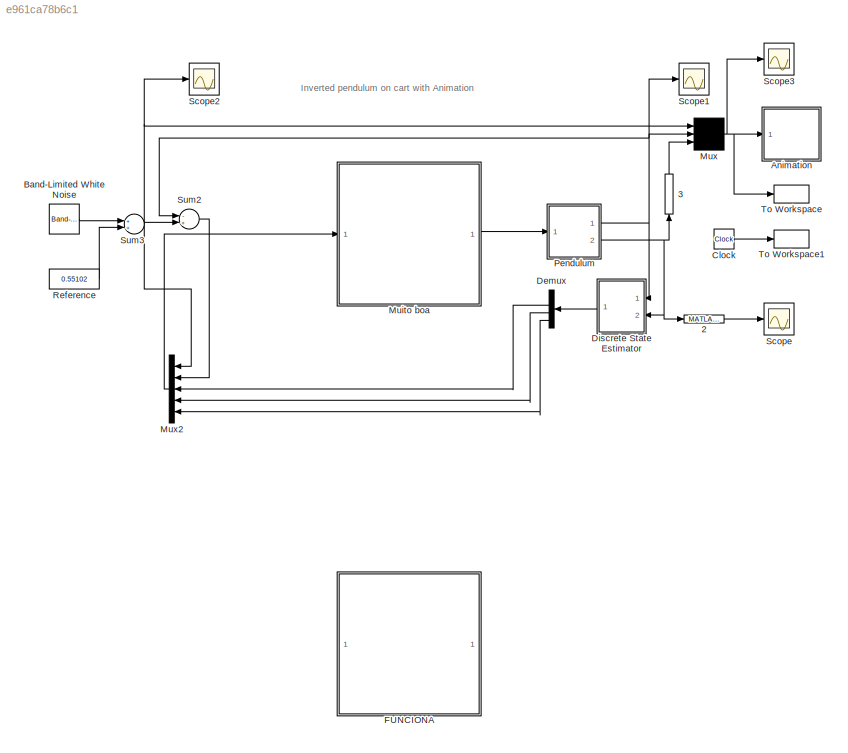
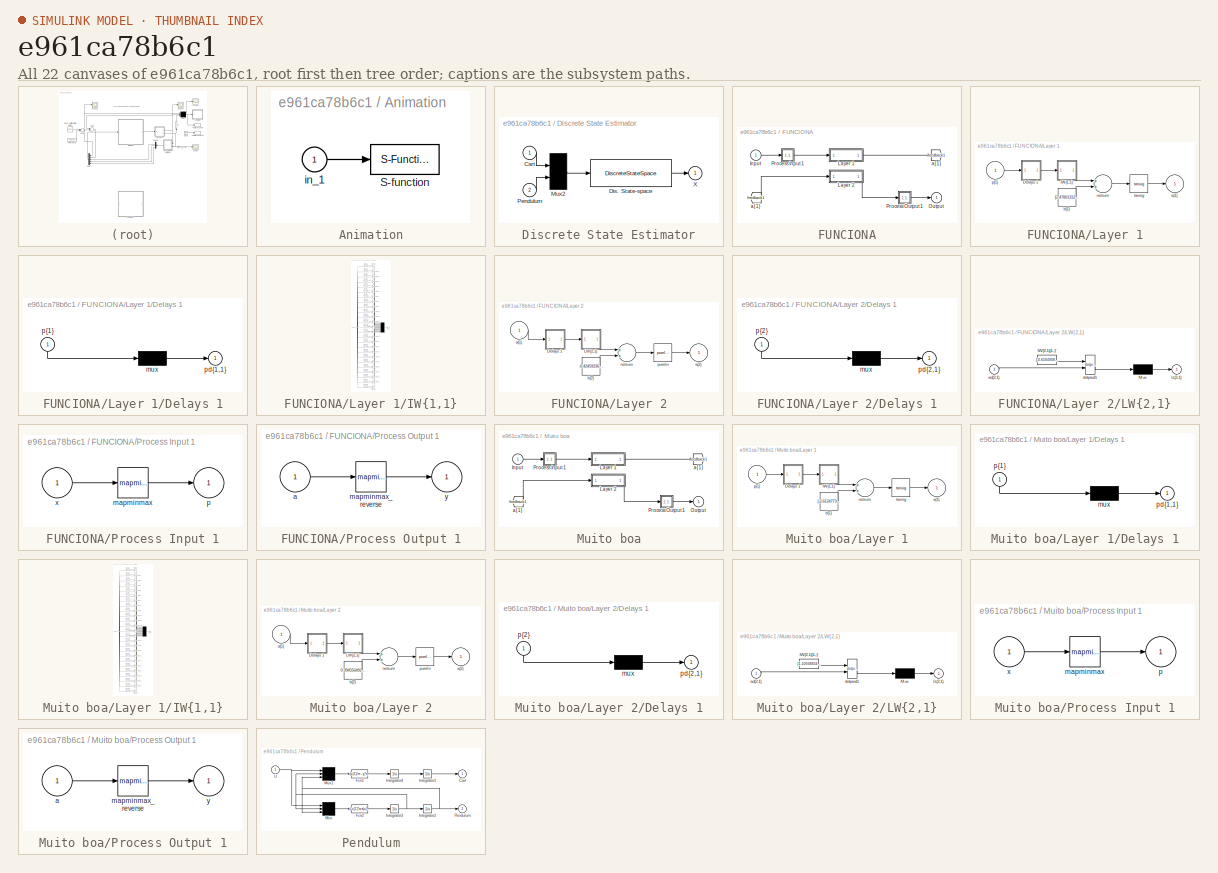
[diagram: thumbnail index - all 22 canvases of the model, root first then tree order]
MODEL slx_e961ca78b6c1
KIND model
BLOCK [MATLABFcn]  2
  MATLABFcn = wrapToPi
  Ports = [1, 1]
BLOCK [MATLABFcn]  3
  MATLABFcn = wrapToPi
  Ports = [1, 1]
BLOCK [SubSystem] Animation
  FunctionWithSeparateData = off
  MaskHideContents = off
  MinAlgLoopOccurrences = off
  Opaque = off
  Ports = [1]
  PropExecContextOutsideSubsystem = off
  RTWSystemCode = Auto
  RequestExecContextInheritance = off
BLOCK [S-Function] Animation/S-function
  DeleteFcn = pendan([],[],[],'DeleteBlock');
  EnableBusSupport = off
  FunctionName = pendan
  Parameters = RefBlock
  Ports = [1]
BLOCK [Inport] Animation/in_1
  IconDisplay = Port number
BLOCK [Reference] Band-Limited White Noise  REF=simulink/Sources/Band-Limited
White Noise
  Cov = [1e3]
  Ports = [0, 1]
  SourceBlock = simulink/Sources/Band-Limited\nWhite Noise
  SourceType = Band-Limited White Noise.
  Ts = 5
  VectorParams1D = on
  seed = [2332]
BLOCK [Clock] Clock
BLOCK [Demux] Demux
  DisplayOption = bar
  Ports = [1, 4]
BLOCK [SubSystem] Discrete State Estimator
  FunctionWithSeparateData = off
  MaskHideContents = off
  MinAlgLoopOccurrences = off
  Opaque = off
  Ports = [2, 1]
  PropExecContextOutsideSubsystem = off
  RTWSystemCode = Auto
  RequestExecContextInheritance = off
BLOCK [Inport] Discrete State Estimator/Cart
  IconDisplay = Port number
BLOCK [DiscreteStateSpace] Discrete State Estimator/Dis. State-space
  A = zeros(2)
  B = -eye(2)/Ts
  C = [0 0; 1 0; 0 0; 0 1]
  D = [1 0; 1/Ts 0; 0 1; 0 1/Ts]
  SampleTime = Ts
BLOCK [Mux] Discrete State Estimator/Mux2
  Inputs = 2
  Ports = [2, 1]
BLOCK [Inport] Discrete State Estimator/Pendulum
  IconDisplay = Port number
  Port = 2
BLOCK [Outport] Discrete State Estimator/X
  IconDisplay = Port number
  InitialOutput = 0
BLOCK [SubSystem] FUNCIONA
  FunctionWithSeparateData = off
  MaskHideContents = off
  MinAlgLoopOccurrences = off
  Opaque = off
  Ports = [1, 1]
  PropExecContextOutsideSubsystem = off
  RTWSystemCode = Auto
  RequestExecContextInheritance = off
BLOCK [From] FUNCIONA/ a{1} 
  GotoTag = feedback1
BLOCK [Inport] FUNCIONA/Input
  IconDisplay = Port number
  PortDimensions = 5
BLOCK [SubSystem] FUNCIONA/Layer 1
  FunctionWithSeparateData = off
  MaskHideContents = off
  MinAlgLoopOccurrences = off
  Opaque = off
  Ports = [1, 1]
  PropExecContextOutsideSubsystem = off
  RTWSystemCode = Auto
  RequestExecContextInheritance = off
BLOCK [SubSystem] FUNCIONA/Layer 1/Delays 1
  FunctionWithSeparateData = off
  MaskHideContents = off
  MinAlgLoopOccurrences = off
  Opaque = off
  Ports = [1, 1]
  PropExecContextOutsideSubsystem = off
  RTWSystemCode = Auto
  RequestExecContextInheritance = off
BLOCK [Mux] FUNCIONA/Layer 1/Delays 1/mux
  Inputs = 1
  Ports = [1, 1]
BLOCK [Outport] FUNCIONA/Layer 1/Delays 1/pd{1,1}
  IconDisplay = Port number
BLOCK [Inport] FUNCIONA/Layer 1/Delays 1/p{1}
  IconDisplay = Port number
  PortDimensions = 5
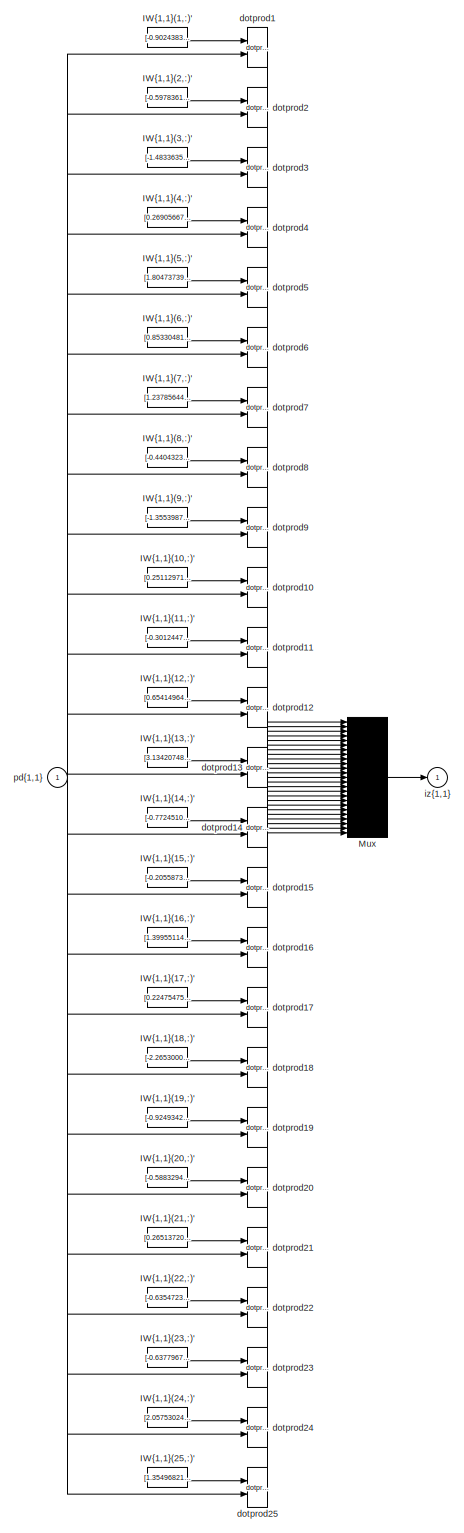
[diagram: FUNCIONA/Layer 1/IW{1,1} - part 1/1, most of the canvas]
BLOCK [SubSystem] FUNCIONA/Layer 1/IW{1,1}
  FunctionWithSeparateData = off
  MaskHideContents = off
  MinAlgLoopOccurrences = off
  Opaque = off
  Ports = [1, 1]
  PropExecContextOutsideSubsystem = off
  RTWSystemCode = Auto
  RequestExecContextInheritance = off
BLOCK [Constant] FUNCIONA/Layer 1/IW{1,1}/IW{1,1}(1,:)'
  Value = [-0.9024383204632433486125364652252756059169769287109375;1.6190485671564551761747452474082820117473602294921875;0.54904829238585139972173010391998104751110076904296875;-1.774604616547297286643924962845630943775177001953125;0.8087580106679315150586262461729347705841064453125]
BLOCK [Constant] FUNCIONA/Layer 1/IW{1,1}/IW{1,1}(10,:)'
  Value = [0.25112971765453762085229527656338177621364593505859375;-1.2859766392730558326462642071419395506381988525390625;-2.050086331319228794001219284837134182453155517578125;-1.1862469984963490698959276414825581014156341552734375;1.2045538171592031773116104886867105960845947265625]
BLOCK [Constant] FUNCIONA/Layer 1/IW{1,1}/IW{1,1}(11,:)'
  Value = [-0.30124474216599927967052963140304200351238250732421875;-0.91519436453694102961975431753671728074550628662109375;1.633828174002984301438345937640406191349029541015625;-0.6398758061140001895950035759597085416316986083984375;1.6286172681963722030928920503356494009494781494140625]
BLOCK [Constant] FUNCIONA/Layer 1/IW{1,1}/IW{1,1}(12,:)'
  Value = [0.6541496427564135185406257733120582997798919677734375;-0.3904813833896805252976491829031147062778472900390625;-0.209181369701294084251230742665939033031463623046875;-0.7117537854228122018440672036376781761646270751953125;1.0593591974591742843614383673411794006824493408203125]
BLOCK [Constant] FUNCIONA/Layer 1/IW{1,1}/IW{1,1}(13,:)'
  Value = [3.134207480930190303780591420945711433887481689453125;-0.94201831094080612505337057882570661604404449462890625;-1.2349639914208510038662325314362533390522003173828125;-0.5501763123318601511613223919994197785854339599609375;-0.629590718480093958220322747365571558475494384765625]
BLOCK [Constant] FUNCIONA/Layer 1/IW{1,1}/IW{1,1}(14,:)'
  Value = [-0.7724510124707475444694182442617602646350860595703125;-0.6903808601932339694684515052358619868755340576171875;-0.03306007495193162559754540552603430114686489105224609375;0.96638577625311417040876449391362257301807403564453125;1.482452078305442899619492891361005604267120361328125]
BLOCK [Constant] FUNCIONA/Layer 1/IW{1,1}/IW{1,1}(15,:)'
  Value = [-0.2055873709788902103934304932408849708735942840576171875;-0.26351122069996735231001139254658482968807220458984375;0.551724068848324922242909451597370207309722900390625;0.39711278053594789572144918565754778683185577392578125;1.9002692267604845977047034466522745788097381591796875]
BLOCK [Constant] FUNCIONA/Layer 1/IW{1,1}/IW{1,1}(16,:)'
  Value = [1.3995511461520795393198568490333855152130126953125;-1.1195874383288375586431584451929666101932525634765625;1.536837898521170142629443944315426051616668701171875;-1.111427039857302734304767000139690935611724853515625;1.67396097591264325643578558810986578464508056640625]
BLOCK [Constant] FUNCIONA/Layer 1/IW{1,1}/IW{1,1}(17,:)'
  Value = [0.224754751784653261648116995274904184043407440185546875;-0.239121765882867542973855279342387802898883819580078125;2.44271431324118371009035399765707552433013916015625;-1.33819056921964563144911153358407318592071533203125;1.56908431161942640841289176023565232753753662109375]
BLOCK [Constant] FUNCIONA/Layer 1/IW{1,1}/IW{1,1}(18,:)'
  Value = [-2.2653000867711625687661580741405487060546875;1.1890746932376459188418493795325048267841339111328125;0.410901211927758580610969829649548046290874481201171875;-0.784403548141600737153567024506628513336181640625;0.81690856875946538107058358946233056485652923583984375]
BLOCK [Constant] FUNCIONA/Layer 1/IW{1,1}/IW{1,1}(19,:)'
  Value = [-0.92493427387360771518842739169485867023468017578125;-1.9712668022112982413318604812957346439361572265625;-1.598405003274220081976864094031043350696563720703125;0.297417115881344507055672465867246501147747039794921875;1.166487835729124622474728312226943671703338623046875]
BLOCK [Constant] FUNCIONA/Layer 1/IW{1,1}/IW{1,1}(2,:)'
  Value = [-0.59783616667076788786516772233881056308746337890625;-0.590281949644684278410977640305645763874053955078125;1.54043189840657834821513461065478622913360595703125;1.727006521640428449160253876470960676670074462890625;0.84173590115727170424264613757259212434291839599609375]
BLOCK [Constant] FUNCIONA/Layer 1/IW{1,1}/IW{1,1}(20,:)'
  Value = [-0.58832949730078543115752154335496015846729278564453125;-1.674086866538494700051842301036231219768524169921875;0.27790152833824344202895417765830643475055694580078125;1.4154430708849059517007162867230363190174102783203125;1.35036786803700525894100792356766760349273681640625]
BLOCK [Constant] FUNCIONA/Layer 1/IW{1,1}/IW{1,1}(21,:)'
  Value = [0.265137201237829078781516045637545175850391387939453125;1.430319911861669623931447858922183513641357421875;-2.586024305974781167805076620425097644329071044921875;-1.1767245264068295629300564542063511908054351806640625;-0.8971228469383429882100244867615401744842529296875]
BLOCK [Constant] FUNCIONA/Layer 1/IW{1,1}/IW{1,1}(22,:)'
  Value = [-0.6354723102660113642770056685549207031726837158203125;1.047147554576875361220800186856649816036224365234375;1.563835046146829110824683084501884877681732177734375;-0.9273416905670399668082382049760781228542327880859375;-1.5319901587373809803693802678026258945465087890625]
BLOCK [Constant] FUNCIONA/Layer 1/IW{1,1}/IW{1,1}(23,:)'
  Value = [-0.63779675620514009182215886539779603481292724609375;2.39907276815795267310704730334691703319549560546875;2.1879670601569412013986948295496404170989990234375;2.17950249771870918635841007926501333713531494140625;2.09678979673032461761295053292997181415557861328125]
BLOCK [Constant] FUNCIONA/Layer 1/IW{1,1}/IW{1,1}(24,:)'
  Value = [2.05753024303321385701792678446508944034576416015625;0.0226871652671219170560590328022954054176807403564453125;0.168463043019395797283976889957557432353496551513671875;-1.154830163089542782728358361055143177509307861328125;1.0793258629773594403644665362662635743618011474609375]
BLOCK [Constant] FUNCIONA/Layer 1/IW{1,1}/IW{1,1}(25,:)'
  Value = [1.35496821365239039636207962757907807826995849609375;-0.70014919758033122842988404954667203128337860107421875;-1.1498052671989829054410847675171680748462677001953125;0.0802612450918858966186775205642334185540676116943359375;2.8569397888880825320256917621009051799774169921875]
BLOCK [Constant] FUNCIONA/Layer 1/IW{1,1}/IW{1,1}(3,:)'
  Value = [-1.483363574276861385214942856691777706146240234375;0.305213529912829850676558862687670625746250152587890625;-0.74876157643061380664306625476456247270107269287109375;-0.81362174863266212287982170892064459621906280517578125;1.5341842639224310129719697215477935969829559326171875]
BLOCK [Constant] FUNCIONA/Layer 1/IW{1,1}/IW{1,1}(4,:)'
  Value = [0.26905667460661597534254951824550516903400421142578125;2.137844139561684730921342634246684610843658447265625;1.77752861788861604708245067740790545940399169921875;1.864045414257542443436932444456033408641815185546875;0.976867580974843274788099733996205031871795654296875]
BLOCK [Constant] FUNCIONA/Layer 1/IW{1,1}/IW{1,1}(5,:)'
  Value = [1.804737399136856712544840775080956518650054931640625;-0.9925853968577047492516385318594984710216522216796875;-1.3701470962354902471957984744221903383731842041015625;-0.50864368032194373636656337112071923911571502685546875;1.57631879529259055772172359866090118885040283203125]
BLOCK [Constant] FUNCIONA/Layer 1/IW{1,1}/IW{1,1}(6,:)'
  Value = [0.8533048123803619322558233761810697615146636962890625;3.58036908778964768629293757840059697628021240234375;0.93955138082216904660270984095404855906963348388671875;0.3152145846498839443228234813432209193706512451171875;0.5828985366545216262323947375989519059658050537109375]
BLOCK [Constant] FUNCIONA/Layer 1/IW{1,1}/IW{1,1}(7,:)'
  Value = [1.2378564459460168478699415572918951511383056640625;1.3234832678049641696560456693987362086772918701171875;-1.7058697543254961459524565725587308406829833984375;-0.9888348417353818309294410937582142651081085205078125;1.592825576721495384191484845359809696674346923828125]
BLOCK [Constant] FUNCIONA/Layer 1/IW{1,1}/IW{1,1}(8,:)'
  Value = [-0.44043236225545812079218421786208637058734893798828125;-1.0343422213816142463116420913138426840305328369140625;0.86879012853014092598868955974467098712921142578125;1.04966566972124208945160717121325433254241943359375;0.51148615976212419287350030572270043194293975830078125]
BLOCK [Constant] FUNCIONA/Layer 1/IW{1,1}/IW{1,1}(9,:)'
  Value = [-1.3553987409737064950832063914276659488677978515625;1.33101749648897094147059760871343314647674560546875;-1.819333306652530790614719080622307956218719482421875;-1.076016036990426361086292672553099691867828369140625;-0.74023980685075418950447101451572962105274200439453125]
BLOCK [Mux] FUNCIONA/Layer 1/IW{1,1}/Mux
  Inputs = 25
  Ports = [25, 1]
BLOCK [Reference] FUNCIONA/Layer 1/IW{1,1}/dotprod1  REF=neural/Weight Functions/dotprod
  Ports = [2, 1]
  SourceBlock = neural/Weight Functions/dotprod
  SourceType = DOTPROD
BLOCK [Reference] FUNCIONA/Layer 1/IW{1,1}/dotprod10  REF=neural/Weight Functions/dotprod
  Ports = [2, 1]
  SourceBlock = neural/Weight Functions/dotprod
  SourceType = DOTPROD
BLOCK [Reference] FUNCIONA/Layer 1/IW{1,1}/dotprod11  REF=neural/Weight Functions/dotprod
  Ports = [2, 1]
  SourceBlock = neural/Weight Functions/dotprod
  SourceType = DOTPROD
BLOCK [Reference] FUNCIONA/Layer 1/IW{1,1}/dotprod12  REF=neural/Weight Functions/dotprod
  Ports = [2, 1]
  SourceBlock = neural/Weight Functions/dotprod
  SourceType = DOTPROD
BLOCK [Reference] FUNCIONA/Layer 1/IW{1,1}/dotprod13  REF=neural/Weight Functions/dotprod
  Ports = [2, 1]
  SourceBlock = neural/Weight Functions/dotprod
  SourceType = DOTPROD
BLOCK [Reference] FUNCIONA/Layer 1/IW{1,1}/dotprod14  REF=neural/Weight Functions/dotprod
  Ports = [2, 1]
  SourceBlock = neural/Weight Functions/dotprod
  SourceType = DOTPROD
BLOCK [Reference] FUNCIONA/Layer 1/IW{1,1}/dotprod15  REF=neural/Weight Functions/dotprod
  Ports = [2, 1]
  SourceBlock = neural/Weight Functions/dotprod
  SourceType = DOTPROD
BLOCK [Reference] FUNCIONA/Layer 1/IW{1,1}/dotprod16  REF=neural/Weight Functions/dotprod
  Ports = [2, 1]
  SourceBlock = neural/Weight Functions/dotprod
  SourceType = DOTPROD
BLOCK [Reference] FUNCIONA/Layer 1/IW{1,1}/dotprod17  REF=neural/Weight Functions/dotprod
  Ports = [2, 1]
  SourceBlock = neural/Weight Functions/dotprod
  SourceType = DOTPROD
BLOCK [Reference] FUNCIONA/Layer 1/IW{1,1}/dotprod18  REF=neural/Weight Functions/dotprod
  Ports = [2, 1]
  SourceBlock = neural/Weight Functions/dotprod
  SourceType = DOTPROD
BLOCK [Reference] FUNCIONA/Layer 1/IW{1,1}/dotprod19  REF=neural/Weight Functions/dotprod
  Ports = [2, 1]
  SourceBlock = neural/Weight Functions/dotprod
  SourceType = DOTPROD
BLOCK [Reference] FUNCIONA/Layer 1/IW{1,1}/dotprod2  REF=neural/Weight Functions/dotprod
  Ports = [2, 1]
  SourceBlock = neural/Weight Functions/dotprod
  SourceType = DOTPROD
BLOCK [Reference] FUNCIONA/Layer 1/IW{1,1}/dotprod20  REF=neural/Weight Functions/dotprod
  Ports = [2, 1]
  SourceBlock = neural/Weight Functions/dotprod
  SourceType = DOTPROD
BLOCK [Reference] FUNCIONA/Layer 1/IW{1,1}/dotprod21  REF=neural/Weight Functions/dotprod
  Ports = [2, 1]
  SourceBlock = neural/Weight Functions/dotprod
  SourceType = DOTPROD
BLOCK [Reference] FUNCIONA/Layer 1/IW{1,1}/dotprod22  REF=neural/Weight Functions/dotprod
  Ports = [2, 1]
  SourceBlock = neural/Weight Functions/dotprod
  SourceType = DOTPROD
BLOCK [Reference] FUNCIONA/Layer 1/IW{1,1}/dotprod23  REF=neural/Weight Functions/dotprod
  Ports = [2, 1]
  SourceBlock = neural/Weight Functions/dotprod
  SourceType = DOTPROD
BLOCK [Reference] FUNCIONA/Layer 1/IW{1,1}/dotprod24  REF=neural/Weight Functions/dotprod
  Ports = [2, 1]
  SourceBlock = neural/Weight Functions/dotprod
  SourceType = DOTPROD
BLOCK [Reference] FUNCIONA/Layer 1/IW{1,1}/dotprod25  REF=neural/Weight Functions/dotprod
  Ports = [2, 1]
  SourceBlock = neural/Weight Functions/dotprod
  SourceType = DOTPROD
BLOCK [Reference] FUNCIONA/Layer 1/IW{1,1}/dotprod3  REF=neural/Weight Functions/dotprod
  Ports = [2, 1]
  SourceBlock = neural/Weight Functions/dotprod
  SourceType = DOTPROD
BLOCK [Reference] FUNCIONA/Layer 1/IW{1,1}/dotprod4  REF=neural/Weight Functions/dotprod
  Ports = [2, 1]
  SourceBlock = neural/Weight Functions/dotprod
  SourceType = DOTPROD
BLOCK [Reference] FUNCIONA/Layer 1/IW{1,1}/dotprod5  REF=neural/Weight Functions/dotprod
  Ports = [2, 1]
  SourceBlock = neural/Weight Functions/dotprod
  SourceType = DOTPROD
BLOCK [Reference] FUNCIONA/Layer 1/IW{1,1}/dotprod6  REF=neural/Weight Functions/dotprod
  Ports = [2, 1]
  SourceBlock = neural/Weight Functions/dotprod
  SourceType = DOTPROD
BLOCK [Reference] FUNCIONA/Layer 1/IW{1,1}/dotprod7  REF=neural/Weight Functions/dotprod
  Ports = [2, 1]
  SourceBlock = neural/Weight Functions/dotprod
  SourceType = DOTPROD
BLOCK [Reference] FUNCIONA/Layer 1/IW{1,1}/dotprod8  REF=neural/Weight Functions/dotprod
  Ports = [2, 1]
  SourceBlock = neural/Weight Functions/dotprod
  SourceType = DOTPROD
BLOCK [Reference] FUNCIONA/Layer 1/IW{1,1}/dotprod9  REF=neural/Weight Functions/dotprod
  Ports = [2, 1]
  SourceBlock = neural/Weight Functions/dotprod
  SourceType = DOTPROD
BLOCK [Outport] FUNCIONA/Layer 1/IW{1,1}/iz{1,1}
  IconDisplay = Port number
BLOCK [Inport] FUNCIONA/Layer 1/IW{1,1}/pd{1,1}
  IconDisplay = Port number
  PortDimensions = 5
BLOCK [Outport] FUNCIONA/Layer 1/a{1}
  IconDisplay = Port number
  InitialOutput = [0;0;0;0;0;0;0;0;0;0;0;0;0;0;0;0;0;0;0;0;0;0;0;0;0]
BLOCK [Constant] FUNCIONA/Layer 1/b{1}
  Value = [2.4780131253264077173525947728194296360015869140625;2.658519286825307137434037940693087875843048095703125;2.382465972763929240585412117070518434047698974609375;-3.687897487174503385887192052905447781085968017578125;-1.452627114522559992337846779264509677886962890625;-3.252609249145363978783507263869978487491607666015625;-2.26933295692606318283424116089008748531341552734375;1.603030231201178157363...<+970ch>
BLOCK [Sum] FUNCIONA/Layer 1/netsum
  Inputs = 2
  Ports = [2, 1]
BLOCK [Inport] FUNCIONA/Layer 1/p{1}
  IconDisplay = Port number
  PortDimensions = 5
BLOCK [Reference] FUNCIONA/Layer 1/tansig  REF=neural/Transfer Functions/tansig
  Ports = [1, 1]
  SourceBlock = neural/Transfer Functions/tansig
  SourceType = TANSIG
BLOCK [SubSystem] FUNCIONA/Layer 2
  FunctionWithSeparateData = off
  MaskHideContents = off
  MinAlgLoopOccurrences = off
  Opaque = off
  Ports = [1, 1]
  PropExecContextOutsideSubsystem = off
  RTWSystemCode = Auto
  RequestExecContextInheritance = off
BLOCK [SubSystem] FUNCIONA/Layer 2/Delays 1
  FunctionWithSeparateData = off
  MaskHideContents = off
  MinAlgLoopOccurrences = off
  Opaque = off
  Ports = [1, 1]
  PropExecContextOutsideSubsystem = off
  RTWSystemCode = Auto
  RequestExecContextInheritance = off
BLOCK [Mux] FUNCIONA/Layer 2/Delays 1/mux
  Inputs = 1
  Ports = [1, 1]
BLOCK [Outport] FUNCIONA/Layer 2/Delays 1/pd{2,1}
  IconDisplay = Port number
BLOCK [Inport] FUNCIONA/Layer 2/Delays 1/p{2}
  IconDisplay = Port number
  PortDimensions = 25
BLOCK [SubSystem] FUNCIONA/Layer 2/LW{2,1}
  FunctionWithSeparateData = off
  MaskHideContents = off
  MinAlgLoopOccurrences = off
  Opaque = off
  Ports = [1, 1]
  PropExecContextOutsideSubsystem = off
  RTWSystemCode = Auto
  RequestExecContextInheritance = off
BLOCK [Constant] FUNCIONA/Layer 2/LW{2,1}/IW{2,1}(1,:)'
  Value = [-0.6504908102746720377496103537851013243198394775390625;0.3491328488462868140373984715552069246768951416015625;0.295718718489143161942678261766559444367885589599609375;0.61441575095757750002434249836369417607784271240234375;-0.00533875859495995530590306543672340922057628631591796875;0.04618446773853114584174051060472265817224979400634765625;-0.09706011478606904607779881644091801717877388000488281...<+1033ch>
BLOCK [Mux] FUNCIONA/Layer 2/LW{2,1}/Mux
  Inputs = 1
  Ports = [1, 1]
BLOCK [Inport] FUNCIONA/Layer 2/LW{2,1}/ad{2,1}
  IconDisplay = Port number
  PortDimensions = 25
BLOCK [Reference] FUNCIONA/Layer 2/LW{2,1}/dotprod1  REF=neural/Weight Functions/dotprod
  Ports = [2, 1]
  SourceBlock = neural/Weight Functions/dotprod
  SourceType = DOTPROD
BLOCK [Outport] FUNCIONA/Layer 2/LW{2,1}/lz{2,1}
  IconDisplay = Port number
BLOCK [Inport] FUNCIONA/Layer 2/a{1} 
  IconDisplay = Port number
  PortDimensions = 25
BLOCK [Outport] FUNCIONA/Layer 2/a{2}
  IconDisplay = Port number
  InitialOutput = 0
BLOCK [Constant] FUNCIONA/Layer 2/b{2}
  Value = -0.424592367581746954474652966382564045488834381103515625
BLOCK [Sum] FUNCIONA/Layer 2/netsum
  Inputs = 2
  Ports = [2, 1]
BLOCK [Reference] FUNCIONA/Layer 2/purelin  REF=neural/Transfer Functions/purelin
  Ports = [1, 1]
  SourceBlock = neural/Transfer Functions/purelin
  SourceType = PURELIN
BLOCK [Outport] FUNCIONA/Output
  IconDisplay = Port number
  InitialOutput = 0
BLOCK [SubSystem] FUNCIONA/Process Input 1
  FunctionWithSeparateData = off
  MaskHideContents = off
  MinAlgLoopOccurrences = off
  Opaque = off
  Ports = [1, 1]
  PropExecContextOutsideSubsystem = off
  RTWSystemCode = Auto
  RequestExecContextInheritance = off
BLOCK [Reference] FUNCIONA/Process Input 1/mapminmax  REF=neural/Processing Functions/mapminmax
  Ports = [1, 1]
  SourceBlock = neural/Processing Functions/mapminmax
  SourceType = MAPMINMAX Preprocess
  xmax = [24.4176314717210054539009433938;20.4471979791952769289764546556;2.82230438116800996795063838363;0.540486315252411753107253389317;7.41306070825618057540395966498]
  xmin = [-8.64701883120414116490337619325;-32.2171385795782470040649059229;-4.96616365747858878876286325976;-0.332067259640767942219241604107;-7.10777605176959692556692971266]
  ymax = 1
  ymin = -1
BLOCK [Outport] FUNCIONA/Process Input 1/p
  IconDisplay = Port number
  PortDimensions = 5
BLOCK [Inport] FUNCIONA/Process Input 1/x
  IconDisplay = Port number
  PortDimensions = 5
BLOCK [SubSystem] FUNCIONA/Process Output 1
  FunctionWithSeparateData = off
  MaskHideContents = off
  MinAlgLoopOccurrences = off
  Opaque = off
  Ports = [1, 1]
  PropExecContextOutsideSubsystem = off
  RTWSystemCode = Auto
  RequestExecContextInheritance = off
BLOCK [Inport] FUNCIONA/Process Output 1/a
  IconDisplay = Port number
  PortDimensions = 1
BLOCK [Reference] FUNCIONA/Process Output 1/mapminmax_reverse  REF=neural/Processing Functions/mapminmax_reverse
  Ports = [1, 1]
  SourceBlock = neural/Processing Functions/mapminmax_reverse
  SourceType = MAPMINMAX Reverse Process
  xmax = 50
  xmin = -50.0854328684048653030913555995
  ymax = 1
  ymin = -1
BLOCK [Outport] FUNCIONA/Process Output 1/y
  IconDisplay = Port number
  PortDimensions = 1
BLOCK [Goto] FUNCIONA/a{1}
  GotoTag = feedback1
BLOCK [SubSystem] Muito boa
  FunctionWithSeparateData = off
  MaskHideContents = off
  MinAlgLoopOccurrences = off
  Opaque = off
  Ports = [1, 1]
  PropExecContextOutsideSubsystem = off
  RTWSystemCode = Auto
  RequestExecContextInheritance = off
BLOCK [From] Muito boa/ a{1} 
  GotoTag = feedback1
BLOCK [Inport] Muito boa/Input
  IconDisplay = Port number
  PortDimensions = 5
BLOCK [SubSystem] Muito boa/Layer 1
  FunctionWithSeparateData = off
  MaskHideContents = off
  MinAlgLoopOccurrences = off
  Opaque = off
  Ports = [1, 1]
  PropExecContextOutsideSubsystem = off
  RTWSystemCode = Auto
  RequestExecContextInheritance = off
BLOCK [SubSystem] Muito boa/Layer 1/Delays 1
  FunctionWithSeparateData = off
  MaskHideContents = off
  MinAlgLoopOccurrences = off
  Opaque = off
  Ports = [1, 1]
  PropExecContextOutsideSubsystem = off
  RTWSystemCode = Auto
  RequestExecContextInheritance = off
BLOCK [Mux] Muito boa/Layer 1/Delays 1/mux
  Inputs = 1
  Ports = [1, 1]
BLOCK [Outport] Muito boa/Layer 1/Delays 1/pd{1,1}
  IconDisplay = Port number
BLOCK [Inport] Muito boa/Layer 1/Delays 1/p{1}
  IconDisplay = Port number
  PortDimensions = 5
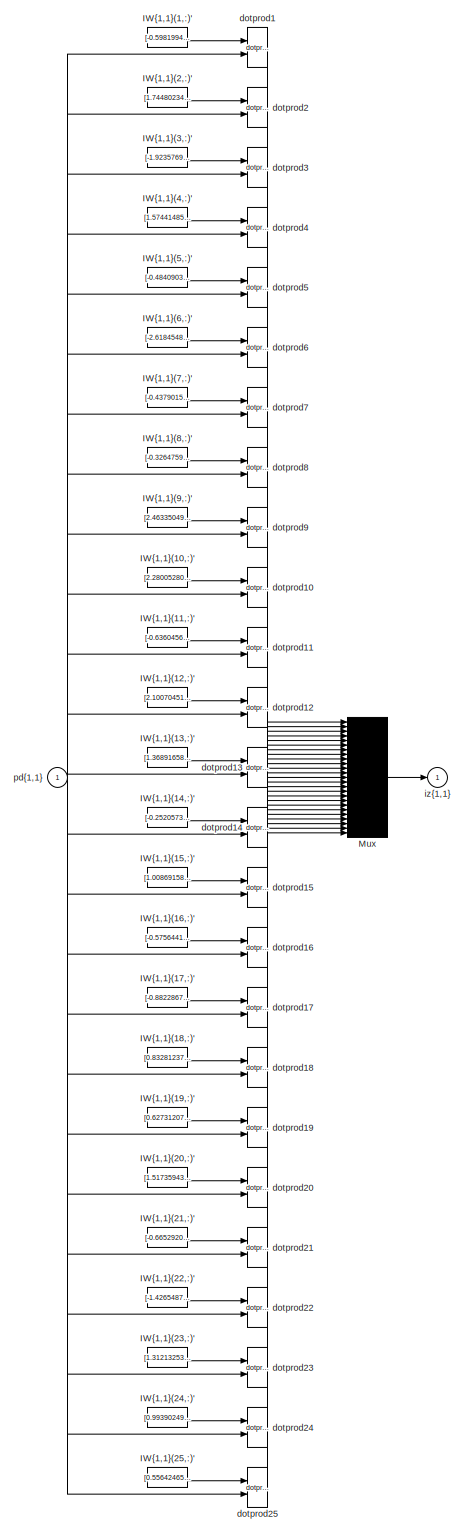
[diagram: Muito boa/Layer 1/IW{1,1} - part 1/1, most of the canvas]
BLOCK [SubSystem] Muito boa/Layer 1/IW{1,1}
  FunctionWithSeparateData = off
  MaskHideContents = off
  MinAlgLoopOccurrences = off
  Opaque = off
  Ports = [1, 1]
  PropExecContextOutsideSubsystem = off
  RTWSystemCode = Auto
  RequestExecContextInheritance = off
BLOCK [Constant] Muito boa/Layer 1/IW{1,1}/IW{1,1}(1,:)'
  Value = [-0.59819946416267288924473177758045494556427001953125;1.3423790759950360307328764974954538047313690185546875;-1.26699916331327688823193966527469456195831298828125;0.39977433293625352916933479718863964080810546875;-2.693915238825237423725411645136773586273193359375]
BLOCK [Constant] Muito boa/Layer 1/IW{1,1}/IW{1,1}(10,:)'
  Value = [2.280052805422213335617698248825035989284515380859375;-0.999558515154959525972344636102207005023956298828125;-1.3311807781825353291793589960434474050998687744140625;1.0185989135489903478770656874985434114933013916015625;0.83444054737598649662544403327046893537044525146484375]
BLOCK [Constant] Muito boa/Layer 1/IW{1,1}/IW{1,1}(11,:)'
  Value = [-0.6360456307114901175481236350606195628643035888671875;1.200896925804985304608862861641682684421539306640625;0.58533575134061432976295691332779824733734130859375;-1.2126243805528436059404384650406427681446075439453125;-0.045516253340419761397317444107102346606552600860595703125]
BLOCK [Constant] Muito boa/Layer 1/IW{1,1}/IW{1,1}(12,:)'
  Value = [2.1007045167924740525222659925930202007293701171875;0.2262142617065062977221856499454588629305362701416015625;-0.52337777970077936640080906727234832942485809326171875;1.5705629693358946763481753805535845458507537841796875;-1.3252617044603358653631630659219808876514434814453125]
BLOCK [Constant] Muito boa/Layer 1/IW{1,1}/IW{1,1}(13,:)'
  Value = [1.3689165880476246162089637437020428478717803955078125;0.28069682355174963017674372167675755918025970458984375;0.178598567705094024571366162490448914468288421630859375;1.9480194239141888079558384561096318066120147705078125;-0.83135977565706919989452217123471200466156005859375]
BLOCK [Constant] Muito boa/Layer 1/IW{1,1}/IW{1,1}(14,:)'
  Value = [-0.252057399895239730991391979841864667832851409912109375;0.0267557064999576731112451710714594810269773006439208984375;0.8591815887886833369435635177069343626499176025390625;-0.0874952420359650651082716876771883107721805572509765625;1.57470447516075040539362817071378231048583984375]
BLOCK [Constant] Muito boa/Layer 1/IW{1,1}/IW{1,1}(15,:)'
  Value = [1.0086915841361594470271256795967929065227508544921875;-1.6495783799655912016390857388614676892757415771484375;1.028404582966321978432233663625083863735198974609375;0.250933776313760514842243765087914653122425079345703125;-1.4575029836792765536301885731518268585205078125]
BLOCK [Constant] Muito boa/Layer 1/IW{1,1}/IW{1,1}(16,:)'
  Value = [-0.57564412035097667352800954176927916705608367919921875;-0.9204221318839771459607845827122218906879425048828125;0.85223981343078636374599454939016140997409820556640625;-0.72773408684655038758393175157834775745868682861328125;3.03823416399529389053668637643568217754364013671875]
BLOCK [Constant] Muito boa/Layer 1/IW{1,1}/IW{1,1}(17,:)'
  Value = [-0.88228679848713509326074699856690131127834320068359375;-1.7507767265678986223775837061111815273761749267578125;0.66965642414799086967747143717133440077304840087890625;-2.345713931190604117915654569515027105808258056640625;-0.324127971346599375035424372981651686131954193115234375]
BLOCK [Constant] Muito boa/Layer 1/IW{1,1}/IW{1,1}(18,:)'
  Value = [0.8328123724337277433704684881377033889293670654296875;1.327601135929409981173421329003758728504180908203125;-0.7034825785957448118779211654327809810638427734375;0.454339877620521637169304085546173155307769775390625;1.83470393335704073933811741881072521209716796875]
BLOCK [Constant] Muito boa/Layer 1/IW{1,1}/IW{1,1}(19,:)'
  Value = [0.62731207768646124467437630300992168486118316650390625;1.390599044985436183452520708669908344745635986328125;-2.001048091625449831809646639158017933368682861328125;0.376947519030679523144300446801935322582721710205078125;0.34108834764909889969430878409184515476226806640625]
BLOCK [Constant] Muito boa/Layer 1/IW{1,1}/IW{1,1}(2,:)'
  Value = [1.7448023442624052137261969619430601596832275390625;2.210994137063312603430631497758440673351287841796875;0.248740605303733042230618366374983452260494232177734375;-0.77349622178316412846044158868608064949512481689453125;1.148656407304276871883530475315637886524200439453125]
BLOCK [Constant] Muito boa/Layer 1/IW{1,1}/IW{1,1}(20,:)'
  Value = [1.517359433243612887309836878557689487934112548828125;-0.60198732482549177635888781878747977316379547119140625;-0.5137337830009751638016268771025352180004119873046875;2.173973477123664732602037474862299859523773193359375;0.022436951996516907303913512805593200027942657470703125]
BLOCK [Constant] Muito boa/Layer 1/IW{1,1}/IW{1,1}(21,:)'
  Value = [-0.66529205947163461143389895369182340800762176513671875;-1.4829826807039891978234891212196089327335357666015625;2.171055821498253823875757007044740021228790283203125;0.27386401504535007322971296161995269358158111572265625;-0.54851173757045368351015213193022646009922027587890625]
BLOCK [Constant] Muito boa/Layer 1/IW{1,1}/IW{1,1}(22,:)'
  Value = [-1.4265487989371881116795748312142677605152130126953125;-0.67714539959179165240499287392594851553440093994140625;-0.7759867724436826375011833079042844474315643310546875;0.58530428995094740951543599294382147490978240966796875;1.242878446803759029393177115707658231258392333984375]
BLOCK [Constant] Muito boa/Layer 1/IW{1,1}/IW{1,1}(23,:)'
  Value = [1.312132534912930470483161116135306656360626220703125;0.71271478233550789038730499669327400624752044677734375;0.460518683975620291004560158398817293345928192138671875;-0.624248611520465512825239784433506429195404052734375;-3.198094038656058568648177242721430957317352294921875]
BLOCK [Constant] Muito boa/Layer 1/IW{1,1}/IW{1,1}(24,:)'
  Value = [0.99390249556238696726495618349872529506683349609375;1.9681703969608168591776120592840015888214111328125;0.0730251837325251729193809069329290650784969329833984375;-0.899490951676819694426967544131912291049957275390625;1.42836956497973321944527924642898142337799072265625]
BLOCK [Constant] Muito boa/Layer 1/IW{1,1}/IW{1,1}(25,:)'
  Value = [0.5564246595645041537636643624864518642425537109375;0.9290969597487777065225600381381809711456298828125;1.233015265039156371784656585077755153179168701171875;-0.129434652828959106951600688262260518968105316162109375;2.686142922821707745839603376225568354129791259765625]
BLOCK [Constant] Muito boa/Layer 1/IW{1,1}/IW{1,1}(3,:)'
  Value = [-1.923576939068870839122382676578126847743988037109375;-0.7186862642628313313508670034934766590595245361328125;0.98450916471889282632901085889898240566253662109375;-0.35739601884029947864718224082025699317455291748046875;-1.4350393059430521791597357150749303400516510009765625]
BLOCK [Constant] Muito boa/Layer 1/IW{1,1}/IW{1,1}(4,:)'
  Value = [1.574414859077506889661890454590320587158203125;1.324759523503887148621060987352393567562103271484375;-1.430915904036419217248976565315388143062591552734375;-0.416114009112179827898359008031548000872135162353515625;0.0118296255227488787686862536929766065441071987152099609375]
BLOCK [Constant] Muito boa/Layer 1/IW{1,1}/IW{1,1}(5,:)'
  Value = [-0.484090390565705075420765979288262315094470977783203125;-2.177103207287141461989676827215589582920074462890625;-1.8632151959997853563066882998100481927394866943359375;0.86066689459083300928199378176941536366939544677734375;-0.02431488209695055469072855203194194473326206207275390625]
BLOCK [Constant] Muito boa/Layer 1/IW{1,1}/IW{1,1}(6,:)'
  Value = [-2.618454816457419287445418376591987907886505126953125;0.72292104174600357868740729827550239861011505126953125;0.406787835082663418173609670702717266976833343505859375;-1.029287884665933905381507429410703480243682861328125;0.489875567931952693445651902948156930506229400634765625]
BLOCK [Constant] Muito boa/Layer 1/IW{1,1}/IW{1,1}(7,:)'
  Value = [-0.437901586752770188848415955362725071609020233154296875;-1.563602229142204702583285325090400874614715576171875;0.474042937407077646927433534074225462973117828369140625;0.758757769256929837098368807346560060977935791015625;-1.1729712763215032200747600654722191393375396728515625]
BLOCK [Constant] Muito boa/Layer 1/IW{1,1}/IW{1,1}(8,:)'
  Value = [-0.326475993917127282895052076128195039927959442138671875;-1.5442378566895416103221805315115489065647125244140625;-2.143531481052611820103948048199526965618133544921875;0.9234569645122812087123520541354082524776458740234375;1.9551617029533556735287902483833022415637969970703125]
BLOCK [Constant] Muito boa/Layer 1/IW{1,1}/IW{1,1}(9,:)'
  Value = [2.463350491883353310385018630768172442913055419921875;-1.52821222282056101704483808134682476520538330078125;1.0525065767237069547235250865924172103404998779296875;0.4091709296605856582829119361122138798236846923828125;-0.10608599725066357455371957030365592800080776214599609375]
BLOCK [Mux] Muito boa/Layer 1/IW{1,1}/Mux
  Inputs = 25
  Ports = [25, 1]
BLOCK [Reference] Muito boa/Layer 1/IW{1,1}/dotprod1  REF=neural/Weight Functions/dotprod
  Ports = [2, 1]
  SourceBlock = neural/Weight Functions/dotprod
  SourceType = DOTPROD
BLOCK [Reference] Muito boa/Layer 1/IW{1,1}/dotprod10  REF=neural/Weight Functions/dotprod
  Ports = [2, 1]
  SourceBlock = neural/Weight Functions/dotprod
  SourceType = DOTPROD
BLOCK [Reference] Muito boa/Layer 1/IW{1,1}/dotprod11  REF=neural/Weight Functions/dotprod
  Ports = [2, 1]
  SourceBlock = neural/Weight Functions/dotprod
  SourceType = DOTPROD
BLOCK [Reference] Muito boa/Layer 1/IW{1,1}/dotprod12  REF=neural/Weight Functions/dotprod
  Ports = [2, 1]
  SourceBlock = neural/Weight Functions/dotprod
  SourceType = DOTPROD
BLOCK [Reference] Muito boa/Layer 1/IW{1,1}/dotprod13  REF=neural/Weight Functions/dotprod
  Ports = [2, 1]
  SourceBlock = neural/Weight Functions/dotprod
  SourceType = DOTPROD
BLOCK [Reference] Muito boa/Layer 1/IW{1,1}/dotprod14  REF=neural/Weight Functions/dotprod
  Ports = [2, 1]
  SourceBlock = neural/Weight Functions/dotprod
  SourceType = DOTPROD
BLOCK [Reference] Muito boa/Layer 1/IW{1,1}/dotprod15  REF=neural/Weight Functions/dotprod
  Ports = [2, 1]
  SourceBlock = neural/Weight Functions/dotprod
  SourceType = DOTPROD
BLOCK [Reference] Muito boa/Layer 1/IW{1,1}/dotprod16  REF=neural/Weight Functions/dotprod
  Ports = [2, 1]
  SourceBlock = neural/Weight Functions/dotprod
  SourceType = DOTPROD
BLOCK [Reference] Muito boa/Layer 1/IW{1,1}/dotprod17  REF=neural/Weight Functions/dotprod
  Ports = [2, 1]
  SourceBlock = neural/Weight Functions/dotprod
  SourceType = DOTPROD
BLOCK [Reference] Muito boa/Layer 1/IW{1,1}/dotprod18  REF=neural/Weight Functions/dotprod
  Ports = [2, 1]
  SourceBlock = neural/Weight Functions/dotprod
  SourceType = DOTPROD
BLOCK [Reference] Muito boa/Layer 1/IW{1,1}/dotprod19  REF=neural/Weight Functions/dotprod
  Ports = [2, 1]
  SourceBlock = neural/Weight Functions/dotprod
  SourceType = DOTPROD
BLOCK [Reference] Muito boa/Layer 1/IW{1,1}/dotprod2  REF=neural/Weight Functions/dotprod
  Ports = [2, 1]
  SourceBlock = neural/Weight Functions/dotprod
  SourceType = DOTPROD
BLOCK [Reference] Muito boa/Layer 1/IW{1,1}/dotprod20  REF=neural/Weight Functions/dotprod
  Ports = [2, 1]
  SourceBlock = neural/Weight Functions/dotprod
  SourceType = DOTPROD
BLOCK [Reference] Muito boa/Layer 1/IW{1,1}/dotprod21  REF=neural/Weight Functions/dotprod
  Ports = [2, 1]
  SourceBlock = neural/Weight Functions/dotprod
  SourceType = DOTPROD
BLOCK [Reference] Muito boa/Layer 1/IW{1,1}/dotprod22  REF=neural/Weight Functions/dotprod
  Ports = [2, 1]
  SourceBlock = neural/Weight Functions/dotprod
  SourceType = DOTPROD
BLOCK [Reference] Muito boa/Layer 1/IW{1,1}/dotprod23  REF=neural/Weight Functions/dotprod
  Ports = [2, 1]
  SourceBlock = neural/Weight Functions/dotprod
  SourceType = DOTPROD
BLOCK [Reference] Muito boa/Layer 1/IW{1,1}/dotprod24  REF=neural/Weight Functions/dotprod
  Ports = [2, 1]
  SourceBlock = neural/Weight Functions/dotprod
  SourceType = DOTPROD
BLOCK [Reference] Muito boa/Layer 1/IW{1,1}/dotprod25  REF=neural/Weight Functions/dotprod
  Ports = [2, 1]
  SourceBlock = neural/Weight Functions/dotprod
  SourceType = DOTPROD
BLOCK [Reference] Muito boa/Layer 1/IW{1,1}/dotprod3  REF=neural/Weight Functions/dotprod
  Ports = [2, 1]
  SourceBlock = neural/Weight Functions/dotprod
  SourceType = DOTPROD
BLOCK [Reference] Muito boa/Layer 1/IW{1,1}/dotprod4  REF=neural/Weight Functions/dotprod
  Ports = [2, 1]
  SourceBlock = neural/Weight Functions/dotprod
  SourceType = DOTPROD
BLOCK [Reference] Muito boa/Layer 1/IW{1,1}/dotprod5  REF=neural/Weight Functions/dotprod
  Ports = [2, 1]
  SourceBlock = neural/Weight Functions/dotprod
  SourceType = DOTPROD
BLOCK [Reference] Muito boa/Layer 1/IW{1,1}/dotprod6  REF=neural/Weight Functions/dotprod
  Ports = [2, 1]
  SourceBlock = neural/Weight Functions/dotprod
  SourceType = DOTPROD
BLOCK [Reference] Muito boa/Layer 1/IW{1,1}/dotprod7  REF=neural/Weight Functions/dotprod
  Ports = [2, 1]
  SourceBlock = neural/Weight Functions/dotprod
  SourceType = DOTPROD
BLOCK [Reference] Muito boa/Layer 1/IW{1,1}/dotprod8  REF=neural/Weight Functions/dotprod
  Ports = [2, 1]
  SourceBlock = neural/Weight Functions/dotprod
  SourceType = DOTPROD
BLOCK [Reference] Muito boa/Layer 1/IW{1,1}/dotprod9  REF=neural/Weight Functions/dotprod
  Ports = [2, 1]
  SourceBlock = neural/Weight Functions/dotprod
  SourceType = DOTPROD
BLOCK [Outport] Muito boa/Layer 1/IW{1,1}/iz{1,1}
  IconDisplay = Port number
BLOCK [Inport] Muito boa/Layer 1/IW{1,1}/pd{1,1}
  IconDisplay = Port number
  PortDimensions = 5
BLOCK [Outport] Muito boa/Layer 1/a{1}
  IconDisplay = Port number
  InitialOutput = [0;0;0;0;0;0;0;0;0;0;0;0;0;0;0;0;0;0;0;0;0;0;0;0;0]
BLOCK [Constant] Muito boa/Layer 1/b{1}
  Value = [-2.61247737910733857091827303520403802394866943359375;-2.70099399767970371755154701531864702701568603515625;1.863058247933278011032598442398011684417724609375;-1.98646043070699018784353029332123696804046630859375;-1.31500931747063010135434524272568523883819580078125;1.082674968091385636626000632531940937042236328125;1.8787005099268154761915639028302393853664398193359375;-1.24064636598991873128738...<+966ch>
BLOCK [Sum] Muito boa/Layer 1/netsum
  Inputs = 2
  Ports = [2, 1]
BLOCK [Inport] Muito boa/Layer 1/p{1}
  IconDisplay = Port number
  PortDimensions = 5
BLOCK [Reference] Muito boa/Layer 1/tansig  REF=neural/Transfer Functions/tansig
  Ports = [1, 1]
  SourceBlock = neural/Transfer Functions/tansig
  SourceType = TANSIG
BLOCK [SubSystem] Muito boa/Layer 2
  FunctionWithSeparateData = off
  MaskHideContents = off
  MinAlgLoopOccurrences = off
  Opaque = off
  Ports = [1, 1]
  PropExecContextOutsideSubsystem = off
  RTWSystemCode = Auto
  RequestExecContextInheritance = off
BLOCK [SubSystem] Muito boa/Layer 2/Delays 1
  FunctionWithSeparateData = off
  MaskHideContents = off
  MinAlgLoopOccurrences = off
  Opaque = off
  Ports = [1, 1]
  PropExecContextOutsideSubsystem = off
  RTWSystemCode = Auto
  RequestExecContextInheritance = off
BLOCK [Mux] Muito boa/Layer 2/Delays 1/mux
  Inputs = 1
  Ports = [1, 1]
BLOCK [Outport] Muito boa/Layer 2/Delays 1/pd{2,1}
  IconDisplay = Port number
BLOCK [Inport] Muito boa/Layer 2/Delays 1/p{2}
  IconDisplay = Port number
  PortDimensions = 25
BLOCK [SubSystem] Muito boa/Layer 2/LW{2,1}
  FunctionWithSeparateData = off
  MaskHideContents = off
  MinAlgLoopOccurrences = off
  Opaque = off
  Ports = [1, 1]
  PropExecContextOutsideSubsystem = off
  RTWSystemCode = Auto
  RequestExecContextInheritance = off
BLOCK [Constant] Muito boa/Layer 2/LW{2,1}/IW{2,1}(1,:)'
  Value = [1.10938834575624678535632483544759452342987060546875;0.12023250435110599543264697786071337759494781494140625;-0.258489344444859880933762497079442255198955535888671875;-0.367916126358453443589979769967612810432910919189453125;0.2146896215890929660030650438784505240619182586669921875;0.02589305925075575942617689406688441522419452667236328125;1.854015455951978363913212888292036950588226318359375;-0....<+1032ch>
BLOCK [Mux] Muito boa/Layer 2/LW{2,1}/Mux
  Inputs = 1
  Ports = [1, 1]
BLOCK [Inport] Muito boa/Layer 2/LW{2,1}/ad{2,1}
  IconDisplay = Port number
  PortDimensions = 25
BLOCK [Reference] Muito boa/Layer 2/LW{2,1}/dotprod1  REF=neural/Weight Functions/dotprod
  Ports = [2, 1]
  SourceBlock = neural/Weight Functions/dotprod
  SourceType = DOTPROD
BLOCK [Outport] Muito boa/Layer 2/LW{2,1}/lz{2,1}
  IconDisplay = Port number
BLOCK [Inport] Muito boa/Layer 2/a{1} 
  IconDisplay = Port number
  PortDimensions = 25
BLOCK [Outport] Muito boa/Layer 2/a{2}
  IconDisplay = Port number
  InitialOutput = 0
BLOCK [Constant] Muito boa/Layer 2/b{2}
  Value = 0.394556492661968294388685762896784581243991851806640625
BLOCK [Sum] Muito boa/Layer 2/netsum
  Inputs = 2
  Ports = [2, 1]
BLOCK [Reference] Muito boa/Layer 2/purelin  REF=neural/Transfer Functions/purelin
  Ports = [1, 1]
  SourceBlock = neural/Transfer Functions/purelin
  SourceType = PURELIN
BLOCK [Outport] Muito boa/Output
  IconDisplay = Port number
  InitialOutput = 0
BLOCK [SubSystem] Muito boa/Process Input 1
  FunctionWithSeparateData = off
  MaskHideContents = off
  MinAlgLoopOccurrences = off
  Opaque = off
  Ports = [1, 1]
  PropExecContextOutsideSubsystem = off
  RTWSystemCode = Auto
  RequestExecContextInheritance = off
BLOCK [Reference] Muito boa/Process Input 1/mapminmax  REF=neural/Processing Functions/mapminmax
  Ports = [1, 1]
  SourceBlock = neural/Processing Functions/mapminmax
  SourceType = MAPMINMAX Preprocess
  xmax = [24.4176314717210054539009433938;33.6241542933409292004398594145;11.0503561559188483442994765937;0.843135127133296413681762260239;12.6617854478057836331572616473]
  xmin = [-20.6763995054083657976207177853;-32.266543211838602189800440101;-10.6847879092352968655177392066;-0.812823719489692120276913556154;-12.2587589636627924960521340836]
  ymax = 1
  ymin = -1
BLOCK [Outport] Muito boa/Process Input 1/p
  IconDisplay = Port number
  PortDimensions = 5
BLOCK [Inport] Muito boa/Process Input 1/x
  IconDisplay = Port number
  PortDimensions = 5
BLOCK [SubSystem] Muito boa/Process Output 1
  FunctionWithSeparateData = off
  MaskHideContents = off
  MinAlgLoopOccurrences = off
  Opaque = off
  Ports = [1, 1]
  PropExecContextOutsideSubsystem = off
  RTWSystemCode = Auto
  RequestExecContextInheritance = off
BLOCK [Inport] Muito boa/Process Output 1/a
  IconDisplay = Port number
  PortDimensions = 1
BLOCK [Reference] Muito boa/Process Output 1/mapminmax_reverse  REF=neural/Processing Functions/mapminmax_reverse
  Ports = [1, 1]
  SourceBlock = neural/Processing Functions/mapminmax_reverse
  SourceType = MAPMINMAX Reverse Process
  xmax = 88.6000507973525373017764650285
  xmin = -85.9117391056990982178831472993
  ymax = 1
  ymin = -1
BLOCK [Outport] Muito boa/Process Output 1/y
  IconDisplay = Port number
  PortDimensions = 1
BLOCK [Goto] Muito boa/a{1}
  GotoTag = feedback1
BLOCK [Mux] Mux
  Inputs = 3
  Ports = [3, 1]
BLOCK [Mux] Mux2
  DisplayOption = bar
  Inputs = 5
  Ports = [5, 1]
BLOCK [SubSystem] Pendulum
  FunctionWithSeparateData = off
  MaskHideContents = off
  MinAlgLoopOccurrences = off
  Opaque = off
  Ports = [1, 2]
  PropExecContextOutsideSubsystem = off
  RTWSystemCode = Auto
  RequestExecContextInheritance = off
BLOCK [Outport] Pendulum/Cart
  IconDisplay = Port number
  InitialOutput = 0
BLOCK [Fcn] Pendulum/Fcn1
  Expr = (u[1]/m - g*sin(u[3])*cos(u[3]) + l*power(u[2],2)*sin(u[3]))/(Mcart/m + power(sin(u[3]),2))
BLOCK [Fcn] Pendulum/Fcn2
  Expr = (-u[1]*cos(u[3])/m + (Mcart+m)*g*sin(u[3])/m - l*power(u[2],2)*sin(u[3])*cos(u[3]))/(l*(Mcart/m + power(sin(u[3]),2)))
BLOCK [Integrator] Pendulum/Integrator1
  Ports = [1, 1]
BLOCK [Integrator] Pendulum/Integrator2
  InitialCondition = pi/2
  Ports = [1, 1]
BLOCK [Integrator] Pendulum/Integrator3
  Ports = [1, 1]
BLOCK [Integrator] Pendulum/Integrator4
  Ports = [1, 1]
BLOCK [Mux] Pendulum/Mux
  Inputs = 3
  Ports = [3, 1]
BLOCK [Mux] Pendulum/Mux1
  Inputs = 3
  Ports = [3, 1]
BLOCK [Outport] Pendulum/Pendulum
  IconDisplay = Port number
  InitialOutput = 0
  Port = 2
BLOCK [Inport] Pendulum/U
  IconDisplay = Port number
BLOCK [Constant] Reference
  Value = 0.55102
BLOCK [Scope] Scope
  DataFormat = StructureWithTime
  Floating = off
  NumInputPorts = 1
  Ports = [1]
  SampleTime = 0
  ShowLegends = off
  TimeRange = 50
  YMax = 3.5
  YMin = -3.5
  ZoomMode = yonly
BLOCK [Scope] Scope1
  DataFormat = StructureWithTime
  Floating = off
  NumInputPorts = 1
  Ports = [1]
  SampleTime = 0
  SaveName = ScopeData1
  ShowLegends = off
BLOCK [Scope] Scope2
  DataFormat = StructureWithTime
  Floating = off
  NumInputPorts = 1
  Ports = [1]
  SampleTime = 0
  SaveName = ScopeData2
  ShowLegends = off
  ZoomMode = yonly
BLOCK [Scope] Scope3
  DataFormat = StructureWithTime
  Floating = off
  NumInputPorts = 1
  Ports = [1]
  SampleTime = 0
  SaveName = ScopeData3
  ShowLegends = off
  YMax = 1000
  YMin = -19000
  ZoomMode = yonly
BLOCK [Sum] Sum2
  Inputs = -+
  Ports = [2, 1]
BLOCK [Sum] Sum3
  Ports = [2, 1]
BLOCK [ToWorkspace] To Workspace
  Ports = [1]
  SampleTime = 0.1
  VariableName = y
BLOCK [ToWorkspace] To Workspace1
  Ports = [1]
  SampleTime = 0.1
  VariableName = t
ANNOTATION (root): Inverted pendulum on cart with Animation
LINE  2:1 -> Scope:1
LINE  3:1 -> Mux:3
LINE Animation/in_1:1 -> Animation/S-function:1
LINE Band-Limited White Noise:1 -> Sum3:1
LINE Clock:1 -> To Workspace1:1
LINE Demux:2 -> Mux2:3
LINE Demux:3 -> Mux2:4
LINE Demux:4 -> Mux2:5
LINE Discrete State Estimator/Cart:1 -> Discrete State Estimator/Mux2:1
LINE Discrete State Estimator/Dis. State-space:1 -> Discrete State Estimator/X:1
LINE Discrete State Estimator/Mux2:1 -> Discrete State Estimator/Dis. State-space:1
LINE Discrete State Estimator/Pendulum:1 -> Discrete State Estimator/Mux2:2
LINE Discrete State Estimator:1 -> Demux:1
LINE FUNCIONA/ a{1} :1 -> FUNCIONA/Layer 2:1
LINE FUNCIONA/Input:1 -> FUNCIONA/Process Input 1:1
LINE FUNCIONA/Layer 1/Delays 1/mux:1 -> FUNCIONA/Layer 1/Delays 1/pd{1,1}:1
LINE FUNCIONA/Layer 1/Delays 1/p{1}:1 -> FUNCIONA/Layer 1/Delays 1/mux:1
LINE FUNCIONA/Layer 1/Delays 1:1 -> FUNCIONA/Layer 1/IW{1,1}:1
LINE FUNCIONA/Layer 1/IW{1,1}/IW{1,1}(1,:)':1 -> FUNCIONA/Layer 1/IW{1,1}/dotprod1:1
LINE FUNCIONA/Layer 1/IW{1,1}/IW{1,1}(10,:)':1 -> FUNCIONA/Layer 1/IW{1,1}/dotprod10:1
LINE FUNCIONA/Layer 1/IW{1,1}/IW{1,1}(11,:)':1 -> FUNCIONA/Layer 1/IW{1,1}/dotprod11:1
LINE FUNCIONA/Layer 1/IW{1,1}/IW{1,1}(12,:)':1 -> FUNCIONA/Layer 1/IW{1,1}/dotprod12:1
LINE FUNCIONA/Layer 1/IW{1,1}/IW{1,1}(13,:)':1 -> FUNCIONA/Layer 1/IW{1,1}/dotprod13:1
LINE FUNCIONA/Layer 1/IW{1,1}/IW{1,1}(14,:)':1 -> FUNCIONA/Layer 1/IW{1,1}/dotprod14:1
LINE FUNCIONA/Layer 1/IW{1,1}/IW{1,1}(15,:)':1 -> FUNCIONA/Layer 1/IW{1,1}/dotprod15:1
LINE FUNCIONA/Layer 1/IW{1,1}/IW{1,1}(16,:)':1 -> FUNCIONA/Layer 1/IW{1,1}/dotprod16:1
LINE FUNCIONA/Layer 1/IW{1,1}/IW{1,1}(17,:)':1 -> FUNCIONA/Layer 1/IW{1,1}/dotprod17:1
LINE FUNCIONA/Layer 1/IW{1,1}/IW{1,1}(18,:)':1 -> FUNCIONA/Layer 1/IW{1,1}/dotprod18:1
LINE FUNCIONA/Layer 1/IW{1,1}/IW{1,1}(19,:)':1 -> FUNCIONA/Layer 1/IW{1,1}/dotprod19:1
LINE FUNCIONA/Layer 1/IW{1,1}/IW{1,1}(2,:)':1 -> FUNCIONA/Layer 1/IW{1,1}/dotprod2:1
LINE FUNCIONA/Layer 1/IW{1,1}/IW{1,1}(20,:)':1 -> FUNCIONA/Layer 1/IW{1,1}/dotprod20:1
LINE FUNCIONA/Layer 1/IW{1,1}/IW{1,1}(21,:)':1 -> FUNCIONA/Layer 1/IW{1,1}/dotprod21:1
LINE FUNCIONA/Layer 1/IW{1,1}/IW{1,1}(22,:)':1 -> FUNCIONA/Layer 1/IW{1,1}/dotprod22:1
LINE FUNCIONA/Layer 1/IW{1,1}/IW{1,1}(23,:)':1 -> FUNCIONA/Layer 1/IW{1,1}/dotprod23:1
LINE FUNCIONA/Layer 1/IW{1,1}/IW{1,1}(24,:)':1 -> FUNCIONA/Layer 1/IW{1,1}/dotprod24:1
LINE FUNCIONA/Layer 1/IW{1,1}/IW{1,1}(25,:)':1 -> FUNCIONA/Layer 1/IW{1,1}/dotprod25:1
LINE FUNCIONA/Layer 1/IW{1,1}/IW{1,1}(3,:)':1 -> FUNCIONA/Layer 1/IW{1,1}/dotprod3:1
LINE FUNCIONA/Layer 1/IW{1,1}/IW{1,1}(4,:)':1 -> FUNCIONA/Layer 1/IW{1,1}/dotprod4:1
LINE FUNCIONA/Layer 1/IW{1,1}/IW{1,1}(5,:)':1 -> FUNCIONA/Layer 1/IW{1,1}/dotprod5:1
LINE FUNCIONA/Layer 1/IW{1,1}/IW{1,1}(6,:)':1 -> FUNCIONA/Layer 1/IW{1,1}/dotprod6:1
LINE FUNCIONA/Layer 1/IW{1,1}/IW{1,1}(7,:)':1 -> FUNCIONA/Layer 1/IW{1,1}/dotprod7:1
LINE FUNCIONA/Layer 1/IW{1,1}/IW{1,1}(8,:)':1 -> FUNCIONA/Layer 1/IW{1,1}/dotprod8:1
LINE FUNCIONA/Layer 1/IW{1,1}/IW{1,1}(9,:)':1 -> FUNCIONA/Layer 1/IW{1,1}/dotprod9:1
LINE FUNCIONA/Layer 1/IW{1,1}/Mux:1 -> FUNCIONA/Layer 1/IW{1,1}/iz{1,1}:1
LINE FUNCIONA/Layer 1/IW{1,1}/dotprod10:1 -> FUNCIONA/Layer 1/IW{1,1}/Mux:10
LINE FUNCIONA/Layer 1/IW{1,1}/dotprod11:1 -> FUNCIONA/Layer 1/IW{1,1}/Mux:11
LINE FUNCIONA/Layer 1/IW{1,1}/dotprod12:1 -> FUNCIONA/Layer 1/IW{1,1}/Mux:12
LINE FUNCIONA/Layer 1/IW{1,1}/dotprod13:1 -> FUNCIONA/Layer 1/IW{1,1}/Mux:13
LINE FUNCIONA/Layer 1/IW{1,1}/dotprod14:1 -> FUNCIONA/Layer 1/IW{1,1}/Mux:14
LINE FUNCIONA/Layer 1/IW{1,1}/dotprod15:1 -> FUNCIONA/Layer 1/IW{1,1}/Mux:15
LINE FUNCIONA/Layer 1/IW{1,1}/dotprod16:1 -> FUNCIONA/Layer 1/IW{1,1}/Mux:16
LINE FUNCIONA/Layer 1/IW{1,1}/dotprod17:1 -> FUNCIONA/Layer 1/IW{1,1}/Mux:17
LINE FUNCIONA/Layer 1/IW{1,1}/dotprod18:1 -> FUNCIONA/Layer 1/IW{1,1}/Mux:18
LINE FUNCIONA/Layer 1/IW{1,1}/dotprod19:1 -> FUNCIONA/Layer 1/IW{1,1}/Mux:19
LINE FUNCIONA/Layer 1/IW{1,1}/dotprod1:1 -> FUNCIONA/Layer 1/IW{1,1}/Mux:1
LINE FUNCIONA/Layer 1/IW{1,1}/dotprod20:1 -> FUNCIONA/Layer 1/IW{1,1}/Mux:20
LINE FUNCIONA/Layer 1/IW{1,1}/dotprod21:1 -> FUNCIONA/Layer 1/IW{1,1}/Mux:21
LINE FUNCIONA/Layer 1/IW{1,1}/dotprod22:1 -> FUNCIONA/Layer 1/IW{1,1}/Mux:22
LINE FUNCIONA/Layer 1/IW{1,1}/dotprod23:1 -> FUNCIONA/Layer 1/IW{1,1}/Mux:23
LINE FUNCIONA/Layer 1/IW{1,1}/dotprod24:1 -> FUNCIONA/Layer 1/IW{1,1}/Mux:24
LINE FUNCIONA/Layer 1/IW{1,1}/dotprod25:1 -> FUNCIONA/Layer 1/IW{1,1}/Mux:25
LINE FUNCIONA/Layer 1/IW{1,1}/dotprod2:1 -> FUNCIONA/Layer 1/IW{1,1}/Mux:2
LINE FUNCIONA/Layer 1/IW{1,1}/dotprod3:1 -> FUNCIONA/Layer 1/IW{1,1}/Mux:3
LINE FUNCIONA/Layer 1/IW{1,1}/dotprod4:1 -> FUNCIONA/Layer 1/IW{1,1}/Mux:4
LINE FUNCIONA/Layer 1/IW{1,1}/dotprod5:1 -> FUNCIONA/Layer 1/IW{1,1}/Mux:5
LINE FUNCIONA/Layer 1/IW{1,1}/dotprod6:1 -> FUNCIONA/Layer 1/IW{1,1}/Mux:6
LINE FUNCIONA/Layer 1/IW{1,1}/dotprod7:1 -> FUNCIONA/Layer 1/IW{1,1}/Mux:7
LINE FUNCIONA/Layer 1/IW{1,1}/dotprod8:1 -> FUNCIONA/Layer 1/IW{1,1}/Mux:8
LINE FUNCIONA/Layer 1/IW{1,1}/dotprod9:1 -> FUNCIONA/Layer 1/IW{1,1}/Mux:9
NET FUNCIONA/Layer 1/IW{1,1}/pd{1,1}:1 -> FUNCIONA/Layer 1/IW{1,1}/dotprod10:2, FUNCIONA/Layer 1/IW{1,1}/dotprod11:2, FUNCIONA/Layer 1/IW{1,1}/dotprod12:2, FUNCIONA/Layer 1/IW{1,1}/dotprod13:2, FUNCIONA/Layer 1/IW{1,1}/dotprod14:2, FUNCIONA/Layer 1/IW{1,1}/dotprod15:2, FUNCIONA/Layer 1/IW{1,1}/dotprod16:2, FUNCIONA/Layer 1/IW{1,1}/dotprod17:2, FUNCIONA/Layer 1/IW{1,1}/dotprod18:2, FUNCIONA/Layer 1/IW{1,1}/dotprod19:2, FUNCIONA/Layer 1/IW{1,1}/dotprod1:2, FUNCIONA/Layer 1/IW{1,1}/dotprod20:2, FUNCIONA/Layer 1/IW{1,1}/dotprod21:2, FUNCIONA/Layer 1/IW{1,1}/dotprod22:2, FUNCIONA/Layer 1/IW{1,1}/dotprod23:2, FUNCIONA/Layer 1/IW{1,1}/dotprod24:2, FUNCIONA/Layer 1/IW{1,1}/dotprod25:2, FUNCIONA/Layer 1/IW{1,1}/dotprod2:2, FUNCIONA/Layer 1/IW{1,1}/dotprod3:2, FUNCIONA/Layer 1/IW{1,1}/dotprod4:2, FUNCIONA/Layer 1/IW{1,1}/dotprod5:2, FUNCIONA/Layer 1/IW{1,1}/dotprod6:2, FUNCIONA/Layer 1/IW{1,1}/dotprod7:2, FUNCIONA/Layer 1/IW{1,1}/dotprod8:2, FUNCIONA/Layer 1/IW{1,1}/dotprod9:2
LINE FUNCIONA/Layer 1/IW{1,1}:1 -> FUNCIONA/Layer 1/netsum:1
LINE FUNCIONA/Layer 1/b{1}:1 -> FUNCIONA/Layer 1/netsum:2
LINE FUNCIONA/Layer 1/netsum:1 -> FUNCIONA/Layer 1/tansig:1
LINE FUNCIONA/Layer 1/p{1}:1 -> FUNCIONA/Layer 1/Delays 1:1
LINE FUNCIONA/Layer 1/tansig:1 -> FUNCIONA/Layer 1/a{1}:1
LINE FUNCIONA/Layer 1:1 -> FUNCIONA/a{1}:1
LINE FUNCIONA/Layer 2/Delays 1/mux:1 -> FUNCIONA/Layer 2/Delays 1/pd{2,1}:1
LINE FUNCIONA/Layer 2/Delays 1/p{2}:1 -> FUNCIONA/Layer 2/Delays 1/mux:1
LINE FUNCIONA/Layer 2/Delays 1:1 -> FUNCIONA/Layer 2/LW{2,1}:1
LINE FUNCIONA/Layer 2/LW{2,1}/IW{2,1}(1,:)':1 -> FUNCIONA/Layer 2/LW{2,1}/dotprod1:1
LINE FUNCIONA/Layer 2/LW{2,1}/Mux:1 -> FUNCIONA/Layer 2/LW{2,1}/lz{2,1}:1
LINE FUNCIONA/Layer 2/LW{2,1}/ad{2,1}:1 -> FUNCIONA/Layer 2/LW{2,1}/dotprod1:2
LINE FUNCIONA/Layer 2/LW{2,1}/dotprod1:1 -> FUNCIONA/Layer 2/LW{2,1}/Mux:1
LINE FUNCIONA/Layer 2/LW{2,1}:1 -> FUNCIONA/Layer 2/netsum:1
LINE FUNCIONA/Layer 2/a{1} :1 -> FUNCIONA/Layer 2/Delays 1:1
LINE FUNCIONA/Layer 2/b{2}:1 -> FUNCIONA/Layer 2/netsum:2
LINE FUNCIONA/Layer 2/netsum:1 -> FUNCIONA/Layer 2/purelin:1
LINE FUNCIONA/Layer 2/purelin:1 -> FUNCIONA/Layer 2/a{2}:1
LINE FUNCIONA/Layer 2:1 -> FUNCIONA/Process Output 1:1
LINE FUNCIONA/Process Input 1/mapminmax:1 -> FUNCIONA/Process Input 1/p:1
LINE FUNCIONA/Process Input 1/x:1 -> FUNCIONA/Process Input 1/mapminmax:1
LINE FUNCIONA/Process Input 1:1 -> FUNCIONA/Layer 1:1
LINE FUNCIONA/Process Output 1/a:1 -> FUNCIONA/Process Output 1/mapminmax_reverse:1
LINE FUNCIONA/Process Output 1/mapminmax_reverse:1 -> FUNCIONA/Process Output 1/y:1
LINE FUNCIONA/Process Output 1:1 -> FUNCIONA/Output:1
LINE Muito boa/ a{1} :1 -> Muito boa/Layer 2:1
LINE Muito boa/Input:1 -> Muito boa/Process Input 1:1
LINE Muito boa/Layer 1/Delays 1/mux:1 -> Muito boa/Layer 1/Delays 1/pd{1,1}:1
LINE Muito boa/Layer 1/Delays 1/p{1}:1 -> Muito boa/Layer 1/Delays 1/mux:1
LINE Muito boa/Layer 1/Delays 1:1 -> Muito boa/Layer 1/IW{1,1}:1
LINE Muito boa/Layer 1/IW{1,1}/IW{1,1}(1,:)':1 -> Muito boa/Layer 1/IW{1,1}/dotprod1:1
LINE Muito boa/Layer 1/IW{1,1}/IW{1,1}(10,:)':1 -> Muito boa/Layer 1/IW{1,1}/dotprod10:1
LINE Muito boa/Layer 1/IW{1,1}/IW{1,1}(11,:)':1 -> Muito boa/Layer 1/IW{1,1}/dotprod11:1
LINE Muito boa/Layer 1/IW{1,1}/IW{1,1}(12,:)':1 -> Muito boa/Layer 1/IW{1,1}/dotprod12:1
LINE Muito boa/Layer 1/IW{1,1}/IW{1,1}(13,:)':1 -> Muito boa/Layer 1/IW{1,1}/dotprod13:1
LINE Muito boa/Layer 1/IW{1,1}/IW{1,1}(14,:)':1 -> Muito boa/Layer 1/IW{1,1}/dotprod14:1
LINE Muito boa/Layer 1/IW{1,1}/IW{1,1}(15,:)':1 -> Muito boa/Layer 1/IW{1,1}/dotprod15:1
LINE Muito boa/Layer 1/IW{1,1}/IW{1,1}(16,:)':1 -> Muito boa/Layer 1/IW{1,1}/dotprod16:1
LINE Muito boa/Layer 1/IW{1,1}/IW{1,1}(17,:)':1 -> Muito boa/Layer 1/IW{1,1}/dotprod17:1
LINE Muito boa/Layer 1/IW{1,1}/IW{1,1}(18,:)':1 -> Muito boa/Layer 1/IW{1,1}/dotprod18:1
LINE Muito boa/Layer 1/IW{1,1}/IW{1,1}(19,:)':1 -> Muito boa/Layer 1/IW{1,1}/dotprod19:1
LINE Muito boa/Layer 1/IW{1,1}/IW{1,1}(2,:)':1 -> Muito boa/Layer 1/IW{1,1}/dotprod2:1
LINE Muito boa/Layer 1/IW{1,1}/IW{1,1}(20,:)':1 -> Muito boa/Layer 1/IW{1,1}/dotprod20:1
LINE Muito boa/Layer 1/IW{1,1}/IW{1,1}(21,:)':1 -> Muito boa/Layer 1/IW{1,1}/dotprod21:1
LINE Muito boa/Layer 1/IW{1,1}/IW{1,1}(22,:)':1 -> Muito boa/Layer 1/IW{1,1}/dotprod22:1
LINE Muito boa/Layer 1/IW{1,1}/IW{1,1}(23,:)':1 -> Muito boa/Layer 1/IW{1,1}/dotprod23:1
LINE Muito boa/Layer 1/IW{1,1}/IW{1,1}(24,:)':1 -> Muito boa/Layer 1/IW{1,1}/dotprod24:1
LINE Muito boa/Layer 1/IW{1,1}/IW{1,1}(25,:)':1 -> Muito boa/Layer 1/IW{1,1}/dotprod25:1
LINE Muito boa/Layer 1/IW{1,1}/IW{1,1}(3,:)':1 -> Muito boa/Layer 1/IW{1,1}/dotprod3:1
LINE Muito boa/Layer 1/IW{1,1}/IW{1,1}(4,:)':1 -> Muito boa/Layer 1/IW{1,1}/dotprod4:1
LINE Muito boa/Layer 1/IW{1,1}/IW{1,1}(5,:)':1 -> Muito boa/Layer 1/IW{1,1}/dotprod5:1
LINE Muito boa/Layer 1/IW{1,1}/IW{1,1}(6,:)':1 -> Muito boa/Layer 1/IW{1,1}/dotprod6:1
LINE Muito boa/Layer 1/IW{1,1}/IW{1,1}(7,:)':1 -> Muito boa/Layer 1/IW{1,1}/dotprod7:1
LINE Muito boa/Layer 1/IW{1,1}/IW{1,1}(8,:)':1 -> Muito boa/Layer 1/IW{1,1}/dotprod8:1
LINE Muito boa/Layer 1/IW{1,1}/IW{1,1}(9,:)':1 -> Muito boa/Layer 1/IW{1,1}/dotprod9:1
LINE Muito boa/Layer 1/IW{1,1}/Mux:1 -> Muito boa/Layer 1/IW{1,1}/iz{1,1}:1
LINE Muito boa/Layer 1/IW{1,1}/dotprod10:1 -> Muito boa/Layer 1/IW{1,1}/Mux:10
LINE Muito boa/Layer 1/IW{1,1}/dotprod11:1 -> Muito boa/Layer 1/IW{1,1}/Mux:11
LINE Muito boa/Layer 1/IW{1,1}/dotprod12:1 -> Muito boa/Layer 1/IW{1,1}/Mux:12
LINE Muito boa/Layer 1/IW{1,1}/dotprod13:1 -> Muito boa/Layer 1/IW{1,1}/Mux:13
LINE Muito boa/Layer 1/IW{1,1}/dotprod14:1 -> Muito boa/Layer 1/IW{1,1}/Mux:14
LINE Muito boa/Layer 1/IW{1,1}/dotprod15:1 -> Muito boa/Layer 1/IW{1,1}/Mux:15
LINE Muito boa/Layer 1/IW{1,1}/dotprod16:1 -> Muito boa/Layer 1/IW{1,1}/Mux:16
LINE Muito boa/Layer 1/IW{1,1}/dotprod17:1 -> Muito boa/Layer 1/IW{1,1}/Mux:17
LINE Muito boa/Layer 1/IW{1,1}/dotprod18:1 -> Muito boa/Layer 1/IW{1,1}/Mux:18
LINE Muito boa/Layer 1/IW{1,1}/dotprod19:1 -> Muito boa/Layer 1/IW{1,1}/Mux:19
LINE Muito boa/Layer 1/IW{1,1}/dotprod1:1 -> Muito boa/Layer 1/IW{1,1}/Mux:1
LINE Muito boa/Layer 1/IW{1,1}/dotprod20:1 -> Muito boa/Layer 1/IW{1,1}/Mux:20
LINE Muito boa/Layer 1/IW{1,1}/dotprod21:1 -> Muito boa/Layer 1/IW{1,1}/Mux:21
LINE Muito boa/Layer 1/IW{1,1}/dotprod22:1 -> Muito boa/Layer 1/IW{1,1}/Mux:22
LINE Muito boa/Layer 1/IW{1,1}/dotprod23:1 -> Muito boa/Layer 1/IW{1,1}/Mux:23
LINE Muito boa/Layer 1/IW{1,1}/dotprod24:1 -> Muito boa/Layer 1/IW{1,1}/Mux:24
LINE Muito boa/Layer 1/IW{1,1}/dotprod25:1 -> Muito boa/Layer 1/IW{1,1}/Mux:25
LINE Muito boa/Layer 1/IW{1,1}/dotprod2:1 -> Muito boa/Layer 1/IW{1,1}/Mux:2
LINE Muito boa/Layer 1/IW{1,1}/dotprod3:1 -> Muito boa/Layer 1/IW{1,1}/Mux:3
LINE Muito boa/Layer 1/IW{1,1}/dotprod4:1 -> Muito boa/Layer 1/IW{1,1}/Mux:4
LINE Muito boa/Layer 1/IW{1,1}/dotprod5:1 -> Muito boa/Layer 1/IW{1,1}/Mux:5
LINE Muito boa/Layer 1/IW{1,1}/dotprod6:1 -> Muito boa/Layer 1/IW{1,1}/Mux:6
LINE Muito boa/Layer 1/IW{1,1}/dotprod7:1 -> Muito boa/Layer 1/IW{1,1}/Mux:7
LINE Muito boa/Layer 1/IW{1,1}/dotprod8:1 -> Muito boa/Layer 1/IW{1,1}/Mux:8
LINE Muito boa/Layer 1/IW{1,1}/dotprod9:1 -> Muito boa/Layer 1/IW{1,1}/Mux:9
NET Muito boa/Layer 1/IW{1,1}/pd{1,1}:1 -> Muito boa/Layer 1/IW{1,1}/dotprod10:2, Muito boa/Layer 1/IW{1,1}/dotprod11:2, Muito boa/Layer 1/IW{1,1}/dotprod12:2, Muito boa/Layer 1/IW{1,1}/dotprod13:2, Muito boa/Layer 1/IW{1,1}/dotprod14:2, Muito boa/Layer 1/IW{1,1}/dotprod15:2, Muito boa/Layer 1/IW{1,1}/dotprod16:2, Muito boa/Layer 1/IW{1,1}/dotprod17:2, Muito boa/Layer 1/IW{1,1}/dotprod18:2, Muito boa/Layer 1/IW{1,1}/dotprod19:2, Muito boa/Layer 1/IW{1,1}/dotprod1:2, Muito boa/Layer 1/IW{1,1}/dotprod20:2, Muito boa/Layer 1/IW{1,1}/dotprod21:2, Muito boa/Layer 1/IW{1,1}/dotprod22:2, Muito boa/Layer 1/IW{1,1}/dotprod23:2, Muito boa/Layer 1/IW{1,1}/dotprod24:2, Muito boa/Layer 1/IW{1,1}/dotprod25:2, Muito boa/Layer 1/IW{1,1}/dotprod2:2, Muito boa/Layer 1/IW{1,1}/dotprod3:2, Muito boa/Layer 1/IW{1,1}/dotprod4:2, Muito boa/Layer 1/IW{1,1}/dotprod5:2, Muito boa/Layer 1/IW{1,1}/dotprod6:2, Muito boa/Layer 1/IW{1,1}/dotprod7:2, Muito boa/Layer 1/IW{1,1}/dotprod8:2, Muito boa/Layer 1/IW{1,1}/dotprod9:2
LINE Muito boa/Layer 1/IW{1,1}:1 -> Muito boa/Layer 1/netsum:1
LINE Muito boa/Layer 1/b{1}:1 -> Muito boa/Layer 1/netsum:2
LINE Muito boa/Layer 1/netsum:1 -> Muito boa/Layer 1/tansig:1
LINE Muito boa/Layer 1/p{1}:1 -> Muito boa/Layer 1/Delays 1:1
LINE Muito boa/Layer 1/tansig:1 -> Muito boa/Layer 1/a{1}:1
LINE Muito boa/Layer 1:1 -> Muito boa/a{1}:1
LINE Muito boa/Layer 2/Delays 1/mux:1 -> Muito boa/Layer 2/Delays 1/pd{2,1}:1
LINE Muito boa/Layer 2/Delays 1/p{2}:1 -> Muito boa/Layer 2/Delays 1/mux:1
LINE Muito boa/Layer 2/Delays 1:1 -> Muito boa/Layer 2/LW{2,1}:1
LINE Muito boa/Layer 2/LW{2,1}/IW{2,1}(1,:)':1 -> Muito boa/Layer 2/LW{2,1}/dotprod1:1
LINE Muito boa/Layer 2/LW{2,1}/Mux:1 -> Muito boa/Layer 2/LW{2,1}/lz{2,1}:1
LINE Muito boa/Layer 2/LW{2,1}/ad{2,1}:1 -> Muito boa/Layer 2/LW{2,1}/dotprod1:2
LINE Muito boa/Layer 2/LW{2,1}/dotprod1:1 -> Muito boa/Layer 2/LW{2,1}/Mux:1
LINE Muito boa/Layer 2/LW{2,1}:1 -> Muito boa/Layer 2/netsum:1
LINE Muito boa/Layer 2/a{1} :1 -> Muito boa/Layer 2/Delays 1:1
LINE Muito boa/Layer 2/b{2}:1 -> Muito boa/Layer 2/netsum:2
LINE Muito boa/Layer 2/netsum:1 -> Muito boa/Layer 2/purelin:1
LINE Muito boa/Layer 2/purelin:1 -> Muito boa/Layer 2/a{2}:1
LINE Muito boa/Layer 2:1 -> Muito boa/Process Output 1:1
LINE Muito boa/Process Input 1/mapminmax:1 -> Muito boa/Process Input 1/p:1
LINE Muito boa/Process Input 1/x:1 -> Muito boa/Process Input 1/mapminmax:1
LINE Muito boa/Process Input 1:1 -> Muito boa/Layer 1:1
LINE Muito boa/Process Output 1/a:1 -> Muito boa/Process Output 1/mapminmax_reverse:1
LINE Muito boa/Process Output 1/mapminmax_reverse:1 -> Muito boa/Process Output 1/y:1
LINE Muito boa/Process Output 1:1 -> Muito boa/Output:1
LINE Muito boa:1 -> Pendulum:1
LINE Mux2:1 -> Muito boa:1
NET Mux:1 -> Animation:1, Scope3:1, To Workspace:1
LINE Pendulum/Fcn1:1 -> Pendulum/Integrator4:1
LINE Pendulum/Fcn2:1 -> Pendulum/Integrator3:1
LINE Pendulum/Integrator1:1 -> Pendulum/Cart:1
NET Pendulum/Integrator2:1 -> Pendulum/Mux1:3, Pendulum/Mux:3, Pendulum/Pendulum:1
NET Pendulum/Integrator3:1 -> Pendulum/Integrator2:1, Pendulum/Mux1:2, Pendulum/Mux:2
LINE Pendulum/Integrator4:1 -> Pendulum/Integrator1:1
LINE Pendulum/Mux1:1 -> Pendulum/Fcn1:1
LINE Pendulum/Mux:1 -> Pendulum/Fcn2:1
NET Pendulum/U:1 -> Pendulum/Mux1:1, Pendulum/Mux:1
NET Pendulum:1 -> Discrete State Estimator:1, Mux:2, Scope1:1, Sum2:1
NET Pendulum:2 ->  2:1,  3:1, Discrete State Estimator:2
LINE Reference:1 -> Sum3:2
LINE Sum2:1 -> Mux2:2
NET Sum3:1 -> Mux2:1, Mux:1, Scope2:1, Sum2:2
note: NET lines group one-source signal fan-out (src -> all destinations, sorted); 1:1 wires keep LINE
